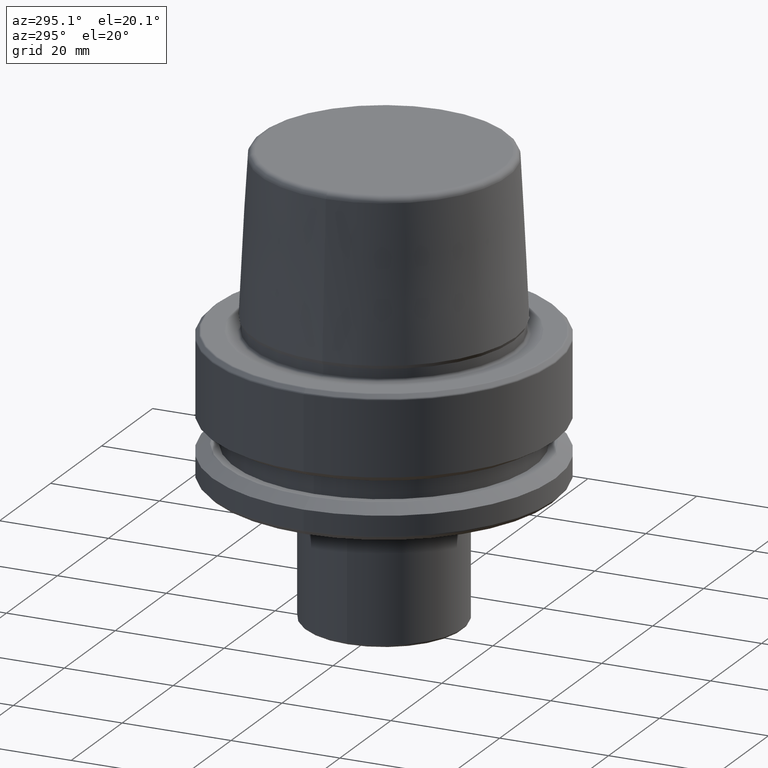
[diagram: clean part render]
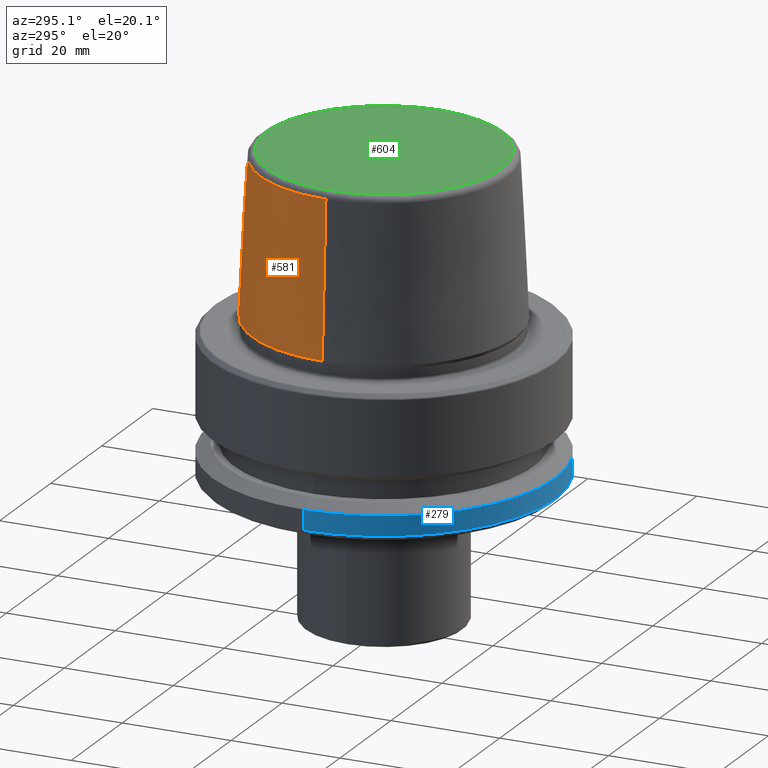
[diagram: same view with three faces highlighted in distinct colors, each labeled with its STEP entity id]
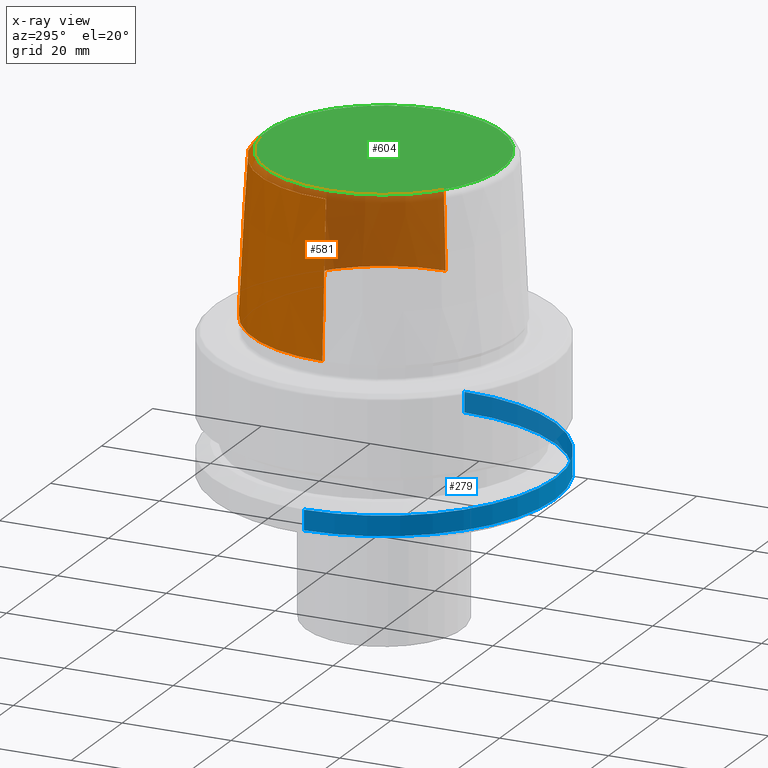
[diagram: x-ray of the same camera — body ghosted, the three highlighted faces saturated]
A machine part, auxiliary view with three faces highlighted in distinct colors.
The next image is the same camera in x-ray (body ghosted, the three faces saturated) — at least one of them is partly hidden behind the body in this view.
Their STEP definitions:

[orange] entity #581 — the highlighted conical surface has half-angle 2.868 deg.
#41 = CIRCLE ( 'NONE', #179, 24.19537568275369200 ) ;
#43 = ORIENTED_EDGE ( 'NONE', *, *, #667, .F. ) ;
#83 = VERTEX_POINT ( 'NONE', #1183 ) ;
#109 = FACE_OUTER_BOUND ( 'NONE', #678, .T. ) ;
#158 = CARTESIAN_POINT ( 'NONE',  ( -22.77957961851797100, 0.0000000000000000000, 30.76004333261571900 ) ) ;
#179 = AXIS2_PLACEMENT_3D ( 'NONE', #669, #377, #765 ) ;
#309 = VECTOR ( 'NONE', #474, 1000.000000000000200 ) ;
#324 = AXIS2_PLACEMENT_3D ( 'NONE', #379, #752, #761 ) ;
#330 = DIRECTION ( 'NONE',  ( 1.000000000000000000, 0.0000000000000000000, 0.0000000000000000000 ) ) ;
#346 = VERTEX_POINT ( 'NONE', #845 ) ;
#364 = CARTESIAN_POINT ( 'NONE',  ( -24.19537568275369200, 0.0000000000000000000, 2.500000000000002200 ) ) ;
#370 = CONICAL_SURFACE ( 'NONE', #324, 24.19537568275369200, 0.05005701257455997400 ) ;
#373 = ORIENTED_EDGE ( 'NONE', *, *, #1243, .F. ) ;
#377 = DIRECTION ( 'NONE',  ( -0.0000000000000000000, -0.0000000000000000000, 1.000000000000000000 ) ) ;
#379 = CARTESIAN_POINT ( 'NONE',  ( 0.0000000000000000000, 0.0000000000000000000, 2.500000000000002200 ) ) ;
#474 = DIRECTION ( 'NONE',  ( -0.05003611051310804400, 0.0000000000000000000, -0.9987474093306675200 ) ) ;
#495 = CARTESIAN_POINT ( 'NONE',  ( 22.77957961851797100, 2.876386432489616700E-015, 30.76004333261571900 ) ) ;
#562 = EDGE_CURVE ( 'NONE', #83, #346, #41, .T. ) ;
#581 = ADVANCED_FACE ( 'NONE', ( #109 ), #370, .T. ) ;
#609 = CARTESIAN_POINT ( 'NONE',  ( 24.19537568275369200, 2.963078938405201500E-015, 2.500000000000002200 ) ) ;
#667 = EDGE_CURVE ( 'NONE', #1223, #919, #698, .T. ) ;
#669 = CARTESIAN_POINT ( 'NONE',  ( 0.0000000000000000000, 0.0000000000000000000, 2.500000000000002200 ) ) ;
#678 = EDGE_LOOP ( 'NONE', ( #43, #680, #868, #373 ) ) ;
#680 = ORIENTED_EDGE ( 'NONE', *, *, #1059, .T. ) ;
#698 = CIRCLE ( 'NONE', #901, 22.77957961851797100 ) ;
#737 = LINE ( 'NONE', #364, #309 ) ;
#752 = DIRECTION ( 'NONE',  ( 0.0000000000000000000, 0.0000000000000000000, -1.000000000000000000 ) ) ;
#761 = DIRECTION ( 'NONE',  ( -1.000000000000000000, 0.0000000000000000000, 0.0000000000000000000 ) ) ;
#765 = DIRECTION ( 'NONE',  ( 1.000000000000000000, 0.0000000000000000000, 0.0000000000000000000 ) ) ;
#815 = CARTESIAN_POINT ( 'NONE',  ( 0.0000000000000000000, 0.0000000000000000000, 30.76004333261571900 ) ) ;
#824 = VECTOR ( 'NONE', #1105, 1000.000000000000200 ) ;
#827 = DIRECTION ( 'NONE',  ( -0.0000000000000000000, -0.0000000000000000000, 1.000000000000000000 ) ) ;
#845 = CARTESIAN_POINT ( 'NONE',  ( -24.19537568275369200, 2.963078938405201500E-015, 2.500000000000002200 ) ) ;
#868 = ORIENTED_EDGE ( 'NONE', *, *, #562, .T. ) ;
#901 = AXIS2_PLACEMENT_3D ( 'NONE', #815, #827, #330 ) ;
#919 = VERTEX_POINT ( 'NONE', #158 ) ;
#1059 = EDGE_CURVE ( 'NONE', #1223, #83, #1257, .T. ) ;
#1105 = DIRECTION ( 'NONE',  ( 0.05003611051310804400, 6.127656258166099700E-018, -0.9987474093306675200 ) ) ;
#1183 = CARTESIAN_POINT ( 'NONE',  ( 24.19537568275369200, 0.0000000000000000000, 2.500000000000002200 ) ) ;
#1223 = VERTEX_POINT ( 'NONE', #495 ) ;
#1243 = EDGE_CURVE ( 'NONE', #919, #346, #737, .T. ) ;
#1257 = LINE ( 'NONE', #609, #824 ) ;

[blue] entity #279 — the highlighted cylindrical surface (partial cylindrical patch) has radius 31.5 mm, axis along (-0, -0, 1).
#5 = VERTEX_POINT ( 'NONE', #120 ) ;
#38 = VECTOR ( 'NONE', #237, 1000.000000000000000 ) ;
#39 = CARTESIAN_POINT ( 'NONE',  ( 0.0000000000000000000, 0.0000000000000000000, 78.96908074195309300 ) ) ;
#58 = VERTEX_POINT ( 'NONE', #284 ) ;
#80 = EDGE_LOOP ( 'NONE', ( #952, #740, #1164, #803 ) ) ;
#115 = EDGE_CURVE ( 'NONE', #5, #768, #406, .T. ) ;
#120 = CARTESIAN_POINT ( 'NONE',  ( -31.50000000000000000, 3.857637417314161900E-015, -25.03431457505077200 ) ) ;
#146 = AXIS2_PLACEMENT_3D ( 'NONE', #39, #343, #653 ) ;
#237 = DIRECTION ( 'NONE',  ( -0.0000000000000000000, -0.0000000000000000000, 1.000000000000000000 ) ) ;
#256 = FACE_OUTER_BOUND ( 'NONE', #80, .T. ) ;
#279 = ADVANCED_FACE ( 'NONE', ( #256 ), #554, .T. ) ;
#284 = CARTESIAN_POINT ( 'NONE',  ( -31.50000000000000000, 3.857637417314162700E-015, -21.37749907475931700 ) ) ;
#317 = EDGE_CURVE ( 'NONE', #5, #58, #433, .T. ) ;
#325 = CARTESIAN_POINT ( 'NONE',  ( 31.50000000000000000, 0.0000000000000000000, -25.03431457505077200 ) ) ;
#343 = DIRECTION ( 'NONE',  ( -0.0000000000000000000, -0.0000000000000000000, 1.000000000000000000 ) ) ;
#398 = DIRECTION ( 'NONE',  ( -0.0000000000000000000, -0.0000000000000000000, 1.000000000000000000 ) ) ;
#406 = CIRCLE ( 'NONE', #1000, 31.50000000000000000 ) ;
#433 = LINE ( 'NONE', #916, #38 ) ;
#504 = DIRECTION ( 'NONE',  ( 1.000000000000000000, 0.0000000000000000000, 0.0000000000000000000 ) ) ;
#554 = CYLINDRICAL_SURFACE ( 'NONE', #146, 31.50000000000000000 ) ;
#606 = CIRCLE ( 'NONE', #873, 31.50000000000000000 ) ;
#653 = DIRECTION ( 'NONE',  ( 1.000000000000000000, 0.0000000000000000000, 0.0000000000000000000 ) ) ;
#683 = LINE ( 'NONE', #1189, #760 ) ;
#740 = ORIENTED_EDGE ( 'NONE', *, *, #115, .T. ) ;
#760 = VECTOR ( 'NONE', #783, 1000.000000000000000 ) ;
#768 = VERTEX_POINT ( 'NONE', #325 ) ;
#783 = DIRECTION ( 'NONE',  ( -0.0000000000000000000, -0.0000000000000000000, 1.000000000000000000 ) ) ;
#803 = ORIENTED_EDGE ( 'NONE', *, *, #859, .F. ) ;
#859 = EDGE_CURVE ( 'NONE', #58, #1065, #606, .T. ) ;
#873 = AXIS2_PLACEMENT_3D ( 'NONE', #938, #1039, #1232 ) ;
#916 = CARTESIAN_POINT ( 'NONE',  ( -31.50000000000000000, 3.857637417314162700E-015, 78.96908074195309300 ) ) ;
#938 = CARTESIAN_POINT ( 'NONE',  ( 0.0000000000000000000, 0.0000000000000000000, -21.37749907475931700 ) ) ;
#952 = ORIENTED_EDGE ( 'NONE', *, *, #317, .F. ) ;
#978 = CARTESIAN_POINT ( 'NONE',  ( 0.0000000000000000000, 0.0000000000000000000, -25.03431457505077200 ) ) ;
#992 = CARTESIAN_POINT ( 'NONE',  ( 31.50000000000000000, 0.0000000000000000000, -21.37749907475931700 ) ) ;
#1000 = AXIS2_PLACEMENT_3D ( 'NONE', #978, #398, #504 ) ;
#1039 = DIRECTION ( 'NONE',  ( -0.0000000000000000000, -0.0000000000000000000, 1.000000000000000000 ) ) ;
#1065 = VERTEX_POINT ( 'NONE', #992 ) ;
#1164 = ORIENTED_EDGE ( 'NONE', *, *, #1249, .T. ) ;
#1189 = CARTESIAN_POINT ( 'NONE',  ( 31.50000000000000000, 0.0000000000000000000, 78.96908074195309300 ) ) ;
#1232 = DIRECTION ( 'NONE',  ( 1.000000000000000000, 0.0000000000000000000, 0.0000000000000000000 ) ) ;
#1249 = EDGE_CURVE ( 'NONE', #768, #1065, #683, .T. ) ;

[green] entity #604 — the highlighted planar face has unit normal (0, 0, -1).
#66 = VERTEX_POINT ( 'NONE', #593 ) ;
#144 = DIRECTION ( 'NONE',  ( 1.000000000000000000, 0.0000000000000000000, 0.0000000000000000000 ) ) ;
#198 = EDGE_LOOP ( 'NONE', ( #959, #635 ) ) ;
#238 = EDGE_CURVE ( 'NONE', #728, #66, #1014, .T. ) ;
#287 = CIRCLE ( 'NONE', #453, 21.58108272732117100 ) ;
#303 = DIRECTION ( 'NONE',  ( -0.0000000000000000000, -0.0000000000000000000, 1.000000000000000000 ) ) ;
#320 = CARTESIAN_POINT ( 'NONE',  ( 0.0000000000000000000, 0.0000000000000000000, 31.89999999999999900 ) ) ;
#415 = DIRECTION ( 'NONE',  ( -1.000000000000000000, 0.0000000000000000000, -0.0000000000000000000 ) ) ;
#453 = AXIS2_PLACEMENT_3D ( 'NONE', #320, #303, #983 ) ;
#538 = CARTESIAN_POINT ( 'NONE',  ( 21.58108272732117100, 0.0000000000000000000, 31.89999999999999900 ) ) ;
#593 = CARTESIAN_POINT ( 'NONE',  ( -21.58108272732117100, 2.716307157494421400E-015, 31.89999999999999900 ) ) ;
#597 = EDGE_CURVE ( 'NONE', #66, #728, #287, .T. ) ;
#604 = ADVANCED_FACE ( 'NONE', ( #682 ), #625, .F. ) ;
#625 = PLANE ( 'NONE',  #645 ) ;
#635 = ORIENTED_EDGE ( 'NONE', *, *, #597, .T. ) ;
#645 = AXIS2_PLACEMENT_3D ( 'NONE', #797, #1188, #415 ) ;
#682 = FACE_OUTER_BOUND ( 'NONE', #198, .T. ) ;
#728 = VERTEX_POINT ( 'NONE', #538 ) ;
#797 = CARTESIAN_POINT ( 'NONE',  ( 0.0000000000000000000, 0.0000000000000000000, 31.89999999999999900 ) ) ;
#959 = ORIENTED_EDGE ( 'NONE', *, *, #238, .T. ) ;
#983 = DIRECTION ( 'NONE',  ( 1.000000000000000000, 0.0000000000000000000, 0.0000000000000000000 ) ) ;
#1014 = CIRCLE ( 'NONE', #1160, 21.58108272732117100 ) ;
#1109 = DIRECTION ( 'NONE',  ( -0.0000000000000000000, -0.0000000000000000000, 1.000000000000000000 ) ) ;
#1120 = CARTESIAN_POINT ( 'NONE',  ( 0.0000000000000000000, 0.0000000000000000000, 31.89999999999999900 ) ) ;
#1160 = AXIS2_PLACEMENT_3D ( 'NONE', #1120, #1109, #144 ) ;
#1188 = DIRECTION ( 'NONE',  ( 0.0000000000000000000, 0.0000000000000000000, -1.000000000000000000 ) ) ;